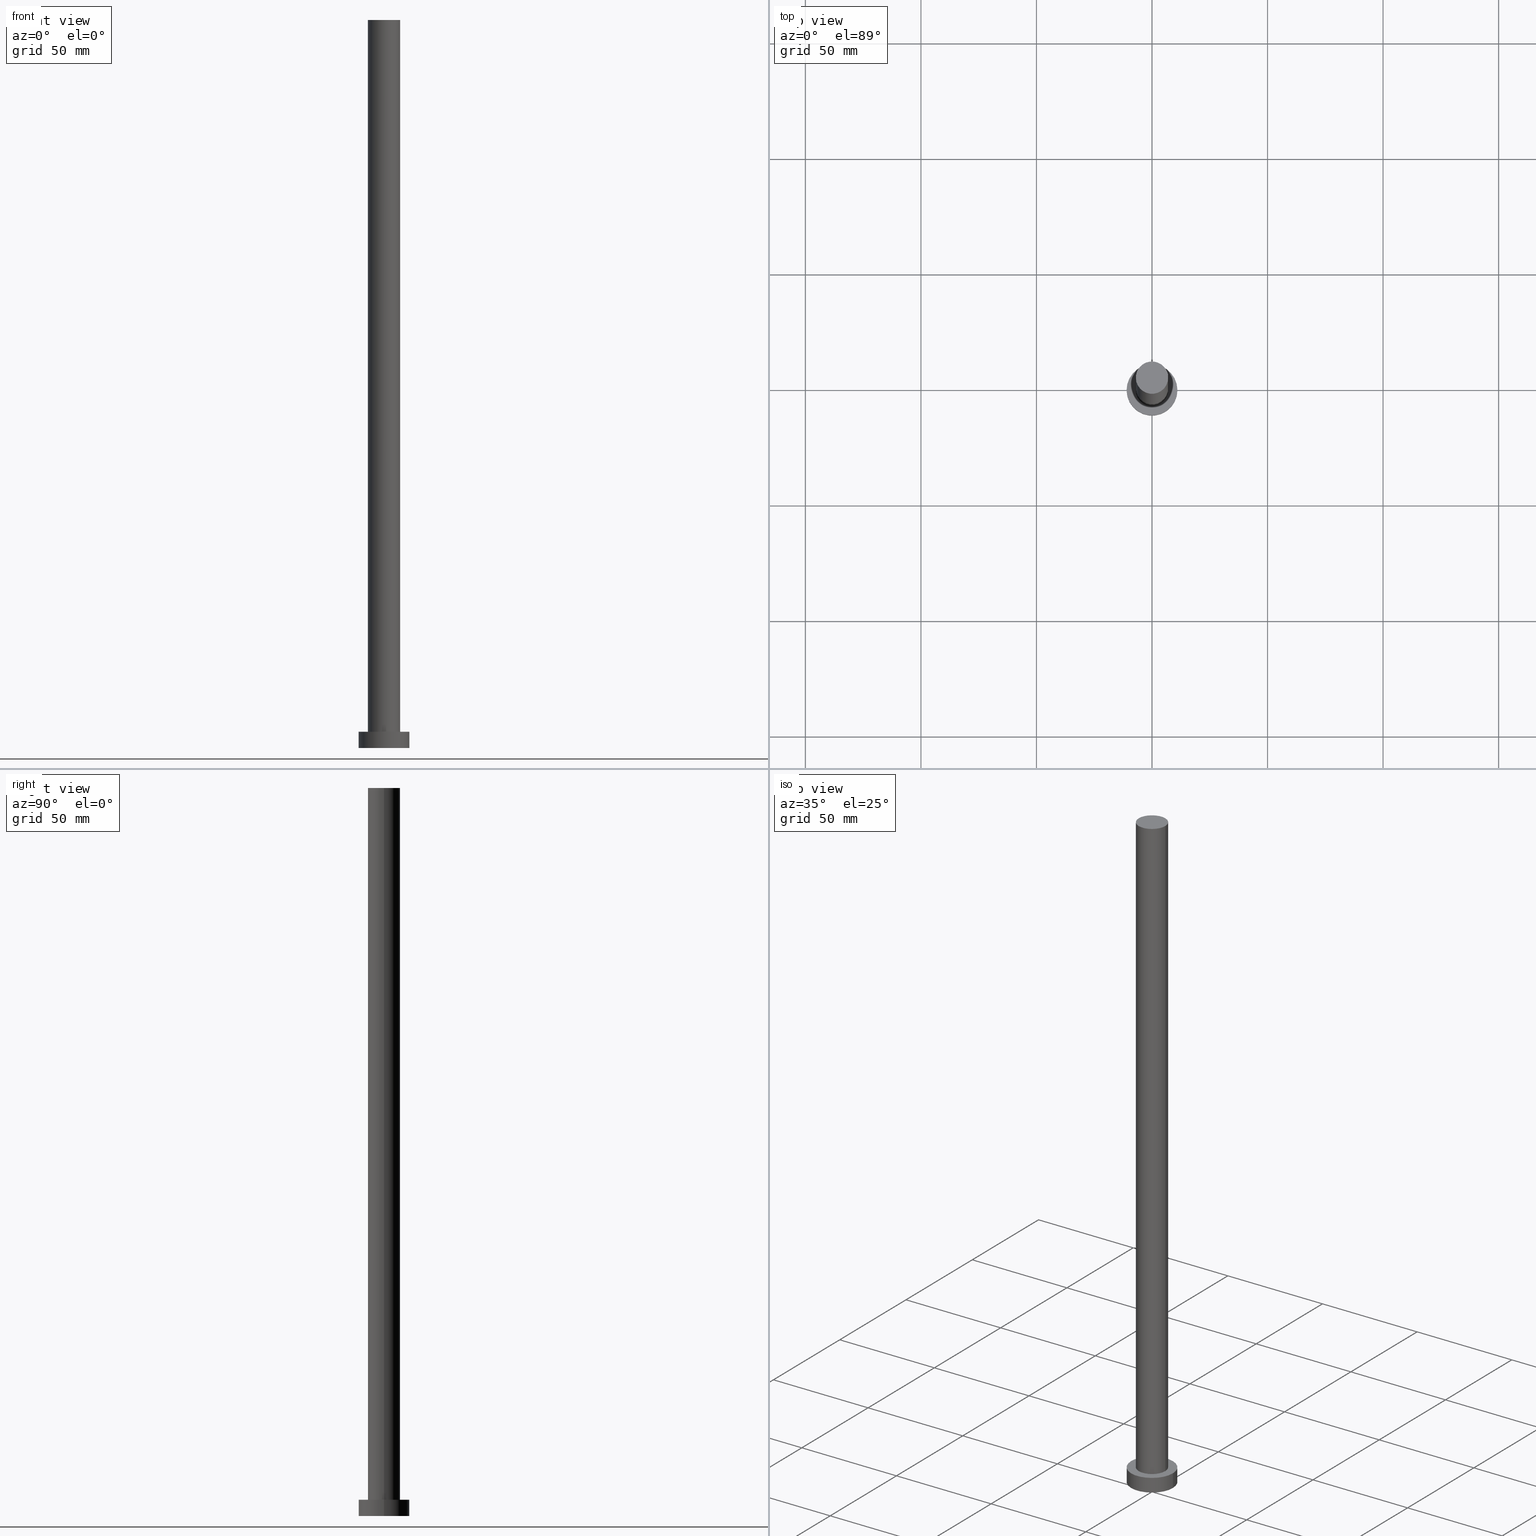
[diagram: canonical four-view strip — front | top / right | iso, engineering-drawing reading convention]
A machine part, canonical four-view strip (front | top / right | iso — engineering-drawing reading convention). The complete STEP part file that produces these views, byte-faithful:
ISO-10303-21;
HEADER;
FILE_DESCRIPTION (( 'STEP AP203' ),
    '1' );
FILE_NAME ('f602.STEP',
    '2023-02-13T09:16:23',
    ( '' ),
    ( '' ),
    'SwSTEP 2.0',
    'SolidWorks 2019',
    '' );
FILE_SCHEMA (( 'CONFIG_CONTROL_DESIGN' ));
ENDSEC;

DATA;
#1 = DIRECTION ( 'NONE',  ( 0.000000000000000000, 0.000000000000000000, 1.000000000000000000 ) ) ;
#2 = CARTESIAN_POINT ( 'NONE',  ( 0.000000000000000000, 0.000000000000000000, 7.000000000000000000 ) ) ;
#3 = DIRECTION ( 'NONE',  ( -1.000000000000000000, 0.000000000000000000, 0.000000000000000000 ) ) ;
#4 =( GEOMETRIC_REPRESENTATION_CONTEXT ( 3 ) GLOBAL_UNCERTAINTY_ASSIGNED_CONTEXT ( ( #163 ) ) GLOBAL_UNIT_ASSIGNED_CONTEXT ( ( #18, #195, #158 ) ) REPRESENTATION_CONTEXT ( 'NONE', 'WORKASPACE' ) );
#5 = CARTESIAN_POINT ( 'NONE',  ( 11.00000000000000000, 1.347111479062088405E-15, 0.000000000000000000 ) ) ;
#6 = DIRECTION ( 'NONE',  ( 1.000000000000000000, 0.000000000000000000, 0.000000000000000000 ) ) ;
#7 = CC_DESIGN_PERSON_AND_ORGANIZATION_ASSIGNMENT ( #89, #147, ( #237 ) ) ;
#8 = EDGE_LOOP ( 'NONE', ( #34, #234, #253, #170 ) ) ;
#9 = APPROVAL_ROLE ( '' ) ;
#10 = DIRECTION ( 'NONE',  ( 0.000000000000000000, 0.000000000000000000, 1.000000000000000000 ) ) ;
#11 = ORIENTED_EDGE ( 'NONE', *, *, #33, .T. ) ;
#12 = ADVANCED_FACE ( 'NONE', ( #66 ), #197, .T. ) ;
#13 = FACE_OUTER_BOUND ( 'NONE', #69, .T. ) ;
#14 = CARTESIAN_POINT ( 'NONE',  ( 11.00000000000000000, 1.347111479062088405E-15, 7.000000000000000000 ) ) ;
#15 = VERTEX_POINT ( 'NONE', #131 ) ;
#16 = CARTESIAN_POINT ( 'NONE',  ( -11.00000000000000000, 0.000000000000000000, 7.000000000000000000 ) ) ;
#17 = FACE_OUTER_BOUND ( 'NONE', #91, .T. ) ;
#18 =( LENGTH_UNIT ( ) NAMED_UNIT ( * ) SI_UNIT ( .MILLI., .METRE. ) );
#19 = DIRECTION ( 'NONE',  ( 1.000000000000000000, 0.000000000000000000, 0.000000000000000000 ) ) ;
#20 = AXIS2_PLACEMENT_3D ( 'NONE', #2, #171, #119 ) ;
#21 = ADVANCED_FACE ( 'NONE', ( #115, #48 ), #28, .T. ) ;
#22 = APPROVAL_DATE_TIME ( #36, #124 ) ;
#23 = PLANE ( 'NONE',  #152 ) ;
#24 = CIRCLE ( 'NONE', #200, 11.00000000000000000 ) ;
#25 = CARTESIAN_POINT ( 'NONE',  ( 7.000000000000000000, 8.572527594031473190E-16, 7.000000000000000000 ) ) ;
#26 = AXIS2_PLACEMENT_3D ( 'NONE', #241, #59, #3 ) ;
#27 = CALENDAR_DATE ( 2023, 13, 2 ) ;
#28 = PLANE ( 'NONE',  #93 ) ;
#29 = APPROVAL_STATUS ( 'not_yet_approved' ) ;
#30 = AXIS2_PLACEMENT_3D ( 'NONE', #196, #10, #110 ) ;
#31 = ORIENTED_EDGE ( 'NONE', *, *, #176, .T. ) ;
#32 = DATE_AND_TIME ( #136, #37 ) ;
#33 = EDGE_CURVE ( 'NONE', #229, #112, #24, .T. ) ;
#34 = ORIENTED_EDGE ( 'NONE', *, *, #176, .F. ) ;
#35 = CARTESIAN_POINT ( 'NONE',  ( -7.000000000000000000, 0.000000000000000000, 7.000000000000000000 ) ) ;
#36 = DATE_AND_TIME ( #60, #166 ) ;
#37 = LOCAL_TIME ( 10, 16, 23.00000000000000000, #235 ) ;
#38 = CARTESIAN_POINT ( 'NONE',  ( -11.00000000000000000, 0.000000000000000000, 0.000000000000000000 ) ) ;
#39 = PERSON_AND_ORGANIZATION ( #255, #194 ) ;
#40 = DIRECTION ( 'NONE',  ( 1.000000000000000000, 0.000000000000000000, 0.000000000000000000 ) ) ;
#41 = PRODUCT_RELATED_PRODUCT_CATEGORY ( 'detail', '', ( #151 ) ) ;
#42 = AXIS2_PLACEMENT_3D ( 'NONE', #220, #102, #40 ) ;
#43 = CC_DESIGN_APPROVAL ( #204, ( #74 ) ) ;
#44 = ORIENTED_EDGE ( 'NONE', *, *, #135, .T. ) ;
#45 = EDGE_CURVE ( 'NONE', #132, #155, #137, .T. ) ;
#46 = AXIS2_PLACEMENT_3D ( 'NONE', #78, #186, #138 ) ;
#47 = ORIENTED_EDGE ( 'NONE', *, *, #63, .T. ) ;
#48 = FACE_OUTER_BOUND ( 'NONE', #53, .T. ) ;
#49 = DATE_TIME_ROLE ( 'classification_date' ) ;
#50 = CALENDAR_DATE ( 2023, 13, 2 ) ;
#51 = CARTESIAN_POINT ( 'NONE',  ( 0.000000000000000000, 0.000000000000000000, 315.0000000000000000 ) ) ;
#52 = EDGE_CURVE ( 'NONE', #239, #254, #87, .T. ) ;
#53 = EDGE_LOOP ( 'NONE', ( #154, #47 ) ) ;
#54 = DIRECTION ( 'NONE',  ( 1.000000000000000000, 0.000000000000000000, 0.000000000000000000 ) ) ;
#55 = EDGE_CURVE ( 'NONE', #112, #229, #247, .T. ) ;
#56 = CIRCLE ( 'NONE', #42, 11.00000000000000000 ) ;
#57 = COORDINATED_UNIVERSAL_TIME_OFFSET ( 1, 0, .AHEAD. ) ;
#58 = APPROVAL_PERSON_ORGANIZATION ( #82, #114, #9 ) ;
#59 = DIRECTION ( 'NONE',  ( -0.000000000000000000, -0.000000000000000000, -1.000000000000000000 ) ) ;
#60 = CALENDAR_DATE ( 2023, 13, 2 ) ;
#61 = VECTOR ( 'NONE', #228, 1000.000000000000000 ) ;
#62 = APPROVAL_PERSON_ORGANIZATION ( #81, #124, #206 ) ;
#63 = EDGE_CURVE ( 'NONE', #15, #199, #178, .T. ) ;
#64 = ORIENTED_EDGE ( 'NONE', *, *, #55, .F. ) ;
#65 = PERSON_AND_ORGANIZATION_ROLE ( 'classification_officer' ) ;
#66 = FACE_OUTER_BOUND ( 'NONE', #214, .T. ) ;
#67 = COORDINATED_UNIVERSAL_TIME_OFFSET ( 1, 0, .AHEAD. ) ;
#68 = CC_DESIGN_PERSON_AND_ORGANIZATION_ASSIGNMENT ( #164, #223, ( #86 ) ) ;
#69 = EDGE_LOOP ( 'NONE', ( #236, #70, #44, #160 ) ) ;
#70 = ORIENTED_EDGE ( 'NONE', *, *, #45, .T. ) ;
#71 = DIRECTION ( 'NONE',  ( 0.000000000000000000, 0.000000000000000000, 1.000000000000000000 ) ) ;
#72 = DIRECTION ( 'NONE',  ( -0.000000000000000000, -0.000000000000000000, -1.000000000000000000 ) ) ;
#73 = ORIENTED_EDGE ( 'NONE', *, *, #215, .F. ) ;
#74 = SECURITY_CLASSIFICATION ( '', '', #141 ) ;
#75 = DIRECTION ( 'NONE',  ( -0.000000000000000000, -0.000000000000000000, -1.000000000000000000 ) ) ;
#76 = CYLINDRICAL_SURFACE ( 'NONE', #26, 11.00000000000000000 ) ;
#77 = CIRCLE ( 'NONE', #99, 7.000000000000000000 ) ;
#78 = CARTESIAN_POINT ( 'NONE',  ( 0.000000000000000000, 0.000000000000000000, 7.000000000000000000 ) ) ;
#79 = CARTESIAN_POINT ( 'NONE',  ( -11.00000000000000000, 0.000000000000000000, 7.000000000000000000 ) ) ;
#80 = CC_DESIGN_DATE_AND_TIME_ASSIGNMENT ( #232, #49, ( #74 ) ) ;
#81 = PERSON_AND_ORGANIZATION ( #255, #194 ) ;
#82 = PERSON_AND_ORGANIZATION ( #255, #194 ) ;
#83 = FACE_OUTER_BOUND ( 'NONE', #8, .T. ) ;
#84 = CC_DESIGN_PERSON_AND_ORGANIZATION_ASSIGNMENT ( #191, #202, ( #86 ) ) ;
#85 = VECTOR ( 'NONE', #75, 1000.000000000000000 ) ;
#86 = PRODUCT_DEFINITION_FORMATION_WITH_SPECIFIED_SOURCE ( 'LIBOVOLN�', '', #151, .NOT_KNOWN. ) ;
#87 = LINE ( 'NONE', #245, #172 ) ;
#88 = LINE ( 'NONE', #14, #180 ) ;
#89 = PERSON_AND_ORGANIZATION ( #255, #194 ) ;
#90 = EDGE_CURVE ( 'NONE', #199, #15, #56, .T. ) ;
#91 = EDGE_LOOP ( 'NONE', ( #128, #31, #11, #150 ) ) ;
#92 = EDGE_CURVE ( 'NONE', #199, #112, #201, .T. ) ;
#93 = AXIS2_PLACEMENT_3D ( 'NONE', #216, #95, #134 ) ;
#94 = LOCAL_TIME ( 10, 16, 23.00000000000000000, #233 ) ;
#95 = DIRECTION ( 'NONE',  ( 0.000000000000000000, 0.000000000000000000, 1.000000000000000000 ) ) ;
#96 = APPROVAL_ROLE ( '' ) ;
#97 = EDGE_CURVE ( 'NONE', #132, #239, #133, .T. ) ;
#98 = DIRECTION ( 'NONE',  ( -0.000000000000000000, -0.000000000000000000, -1.000000000000000000 ) ) ;
#99 = AXIS2_PLACEMENT_3D ( 'NONE', #203, #185, #165 ) ;
#100 = DATE_TIME_ROLE ( 'creation_date' ) ;
#101 = DIRECTION ( 'NONE',  ( 0.000000000000000000, 0.000000000000000000, 1.000000000000000000 ) ) ;
#102 = DIRECTION ( 'NONE',  ( 0.000000000000000000, 0.000000000000000000, 1.000000000000000000 ) ) ;
#103 = CARTESIAN_POINT ( 'NONE',  ( 0.000000000000000000, 0.000000000000000000, 0.000000000000000000 ) ) ;
#104 = CYLINDRICAL_SURFACE ( 'NONE', #20, 11.00000000000000000 ) ;
#105 = ADVANCED_BREP_SHAPE_REPRESENTATION ( 'f602', ( #225, #231 ), #4 ) ;
#106 = CIRCLE ( 'NONE', #226, 7.000000000000000000 ) ;
#107 = ADVANCED_FACE ( 'NONE', ( #211 ), #174, .T. ) ;
#108 = CC_DESIGN_APPROVAL ( #124, ( #86 ) ) ;
#109 = ORIENTED_EDGE ( 'NONE', *, *, #52, .T. ) ;
#110 = DIRECTION ( 'NONE',  ( 1.000000000000000000, 0.000000000000000000, 0.000000000000000000 ) ) ;
#111 = ORIENTED_EDGE ( 'NONE', *, *, #33, .F. ) ;
#112 = VERTEX_POINT ( 'NONE', #38 ) ;
#113 = DIRECTION ( 'NONE',  ( 0.000000000000000000, 0.000000000000000000, 1.000000000000000000 ) ) ;
#114 = APPROVAL ( #175, 'NEUR�EN�' ) ;
#115 = FACE_BOUND ( 'NONE', #192, .T. ) ;
#116 = CC_DESIGN_SECURITY_CLASSIFICATION ( #74, ( #86 ) ) ;
#117 = CARTESIAN_POINT ( 'NONE',  ( 7.000000000000000000, 8.572527594031473190E-16, 315.0000000000000000 ) ) ;
#118 = DESIGN_CONTEXT ( 'detailed design', #210, 'design' ) ;
#119 = DIRECTION ( 'NONE',  ( -1.000000000000000000, 0.000000000000000000, 0.000000000000000000 ) ) ;
#120 = CC_DESIGN_DATE_AND_TIME_ASSIGNMENT ( #221, #100, ( #237 ) ) ;
#121 = DIRECTION ( 'NONE',  ( 1.000000000000000000, 0.000000000000000000, -0.000000000000000000 ) ) ;
#122 = AXIS2_PLACEMENT_3D ( 'NONE', #249, #1, #183 ) ;
#123 = AXIS2_PLACEMENT_3D ( 'NONE', #162, #142, #140 ) ;
#124 = APPROVAL ( #244, 'NEUR�EN�' ) ;
#125 = APPROVAL_DATE_TIME ( #130, #114 ) ;
#126 = CLOSED_SHELL ( 'NONE', ( #127, #145, #189, #21, #149, #12, #107 ) ) ;
#127 = ADVANCED_FACE ( 'NONE', ( #13 ), #159, .T. ) ;
#128 = ORIENTED_EDGE ( 'NONE', *, *, #63, .F. ) ;
#129 = PERSON_AND_ORGANIZATION ( #255, #194 ) ;
#130 = DATE_AND_TIME ( #50, #94 ) ;
#131 = CARTESIAN_POINT ( 'NONE',  ( 11.00000000000000000, 1.347111479062088405E-15, 7.000000000000000000 ) ) ;
#132 = VERTEX_POINT ( 'NONE', #117 ) ;
#133 = CIRCLE ( 'NONE', #208, 7.000000000000000000 ) ;
#134 = DIRECTION ( 'NONE',  ( 1.000000000000000000, 0.000000000000000000, -0.000000000000000000 ) ) ;
#135 = EDGE_CURVE ( 'NONE', #155, #254, #77, .T. ) ;
#136 = CALENDAR_DATE ( 2023, 13, 2 ) ;
#137 = LINE ( 'NONE', #224, #61 ) ;
#138 = DIRECTION ( 'NONE',  ( 1.000000000000000000, 0.000000000000000000, 0.000000000000000000 ) ) ;
#139 = AXIS2_PLACEMENT_3D ( 'NONE', #51, #72, #157 ) ;
#140 = DIRECTION ( 'NONE',  ( -1.000000000000000000, 0.000000000000000000, 0.000000000000000000 ) ) ;
#141 = SECURITY_CLASSIFICATION_LEVEL ( 'unclassified' ) ;
#142 = DIRECTION ( 'NONE',  ( -0.000000000000000000, -0.000000000000000000, -1.000000000000000000 ) ) ;
#143 = PERSON_AND_ORGANIZATION ( #255, #194 ) ;
#144 = PERSON_AND_ORGANIZATION_ROLE ( 'design_owner' ) ;
#145 = ADVANCED_FACE ( 'NONE', ( #17 ), #76, .T. ) ;
#146 = CIRCLE ( 'NONE', #30, 7.000000000000000000 ) ;
#147 = PERSON_AND_ORGANIZATION_ROLE ( 'creator' ) ;
#148 = PRODUCT_DEFINITION_SHAPE ( 'NONE', 'NONE',  #237 ) ;
#149 = ADVANCED_FACE ( 'NONE', ( #168 ), #23, .F. ) ;
#150 = ORIENTED_EDGE ( 'NONE', *, *, #92, .F. ) ;
#151 = PRODUCT ( 'f602', 'f602', '', ( #243 ) ) ;
#152 = AXIS2_PLACEMENT_3D ( 'NONE', #103, #169, #121 ) ;
#153 = EDGE_LOOP ( 'NONE', ( #64, #111 ) ) ;
#154 = ORIENTED_EDGE ( 'NONE', *, *, #90, .T. ) ;
#155 = VERTEX_POINT ( 'NONE', #25 ) ;
#156 = ORIENTED_EDGE ( 'NONE', *, *, #135, .F. ) ;
#157 = DIRECTION ( 'NONE',  ( -1.000000000000000000, 0.000000000000000000, 0.000000000000000000 ) ) ;
#158 =( NAMED_UNIT ( * ) SI_UNIT ( $, .STERADIAN. ) SOLID_ANGLE_UNIT ( ) );
#159 = CYLINDRICAL_SURFACE ( 'NONE', #123, 7.000000000000000000 ) ;
#160 = ORIENTED_EDGE ( 'NONE', *, *, #52, .F. ) ;
#161 = CC_DESIGN_PERSON_AND_ORGANIZATION_ASSIGNMENT ( #143, #144, ( #151 ) ) ;
#162 = CARTESIAN_POINT ( 'NONE',  ( 0.000000000000000000, 0.000000000000000000, 315.0000000000000000 ) ) ;
#163 = UNCERTAINTY_MEASURE_WITH_UNIT (LENGTH_MEASURE( 1.000000000000000082E-05 ), #18, 'distance_accuracy_value', 'NONE');
#164 = PERSON_AND_ORGANIZATION ( #255, #194 ) ;
#165 = DIRECTION ( 'NONE',  ( 1.000000000000000000, 0.000000000000000000, 0.000000000000000000 ) ) ;
#166 = LOCAL_TIME ( 10, 16, 23.00000000000000000, #184 ) ;
#167 = CARTESIAN_POINT ( 'NONE',  ( 0.000000000000000000, 0.000000000000000000, 315.0000000000000000 ) ) ;
#168 = FACE_OUTER_BOUND ( 'NONE', #153, .T. ) ;
#169 = DIRECTION ( 'NONE',  ( 0.000000000000000000, 0.000000000000000000, 1.000000000000000000 ) ) ;
#170 = ORIENTED_EDGE ( 'NONE', *, *, #55, .T. ) ;
#171 = DIRECTION ( 'NONE',  ( -0.000000000000000000, -0.000000000000000000, -1.000000000000000000 ) ) ;
#172 = VECTOR ( 'NONE', #209, 1000.000000000000000 ) ;
#173 = APPROVAL_PERSON_ORGANIZATION ( #129, #204, #96 ) ;
#174 = PLANE ( 'NONE',  #122 ) ;
#175 = APPROVAL_STATUS ( 'not_yet_approved' ) ;
#176 = EDGE_CURVE ( 'NONE', #15, #229, #88, .T. ) ;
#177 = ORIENTED_EDGE ( 'NONE', *, *, #181, .T. ) ;
#178 = CIRCLE ( 'NONE', #46, 11.00000000000000000 ) ;
#179 = EDGE_LOOP ( 'NONE', ( #219, #212 ) ) ;
#180 = VECTOR ( 'NONE', #98, 1000.000000000000000 ) ;
#181 = EDGE_CURVE ( 'NONE', #254, #155, #146, .T. ) ;
#182 = ORIENTED_EDGE ( 'NONE', *, *, #45, .F. ) ;
#183 = DIRECTION ( 'NONE',  ( 1.000000000000000000, 0.000000000000000000, -0.000000000000000000 ) ) ;
#184 = COORDINATED_UNIVERSAL_TIME_OFFSET ( 1, 0, .AHEAD. ) ;
#185 = DIRECTION ( 'NONE',  ( 0.000000000000000000, 0.000000000000000000, 1.000000000000000000 ) ) ;
#186 = DIRECTION ( 'NONE',  ( 0.000000000000000000, 0.000000000000000000, 1.000000000000000000 ) ) ;
#187 = CC_DESIGN_APPROVAL ( #114, ( #237 ) ) ;
#188 = CALENDAR_DATE ( 2023, 13, 2 ) ;
#189 = ADVANCED_FACE ( 'NONE', ( #83 ), #104, .T. ) ;
#190 = DIRECTION ( 'NONE',  ( 0.000000000000000000, 0.000000000000000000, 1.000000000000000000 ) ) ;
#191 = PERSON_AND_ORGANIZATION ( #255, #194 ) ;
#192 = EDGE_LOOP ( 'NONE', ( #251, #156 ) ) ;
#193 = CARTESIAN_POINT ( 'NONE',  ( 0.000000000000000000, 0.000000000000000000, 0.000000000000000000 ) ) ;
#194 = ORGANIZATION ( 'NEUR�EN�', 'NEUR�EN�', '' ) ;
#195 =( NAMED_UNIT ( * ) PLANE_ANGLE_UNIT ( ) SI_UNIT ( $, .RADIAN. ) );
#196 = CARTESIAN_POINT ( 'NONE',  ( 0.000000000000000000, 0.000000000000000000, 7.000000000000000000 ) ) ;
#197 = CYLINDRICAL_SURFACE ( 'NONE', #139, 7.000000000000000000 ) ;
#198 = DIRECTION ( 'NONE',  ( 1.000000000000000000, 0.000000000000000000, 0.000000000000000000 ) ) ;
#199 = VERTEX_POINT ( 'NONE', #79 ) ;
#200 = AXIS2_PLACEMENT_3D ( 'NONE', #218, #113, #54 ) ;
#201 = LINE ( 'NONE', #16, #85 ) ;
#202 = PERSON_AND_ORGANIZATION_ROLE ( 'creator' ) ;
#203 = CARTESIAN_POINT ( 'NONE',  ( 0.000000000000000000, 0.000000000000000000, 7.000000000000000000 ) ) ;
#204 = APPROVAL ( #29, 'NEUR�EN�' ) ;
#205 = APPLICATION_PROTOCOL_DEFINITION ( 'international standard', 'config_control_design', 1994, #210 ) ;
#206 = APPROVAL_ROLE ( '' ) ;
#207 = DIRECTION ( 'NONE',  ( 0.000000000000000000, 0.000000000000000000, 1.000000000000000000 ) ) ;
#208 = AXIS2_PLACEMENT_3D ( 'NONE', #222, #207, #246 ) ;
#209 = DIRECTION ( 'NONE',  ( -0.000000000000000000, -0.000000000000000000, -1.000000000000000000 ) ) ;
#210 = APPLICATION_CONTEXT ( 'configuration controlled 3d designs of mechanical parts and assemblies' ) ;
#211 = FACE_OUTER_BOUND ( 'NONE', #179, .T. ) ;
#212 = ORIENTED_EDGE ( 'NONE', *, *, #97, .T. ) ;
#213 = APPLICATION_CONTEXT ( 'configuration controlled 3d designs of mechanical parts and assemblies' ) ;
#214 = EDGE_LOOP ( 'NONE', ( #182, #73, #109, #177 ) ) ;
#215 = EDGE_CURVE ( 'NONE', #239, #132, #106, .T. ) ;
#216 = CARTESIAN_POINT ( 'NONE',  ( 0.000000000000000000, 0.000000000000000000, 7.000000000000000000 ) ) ;
#217 = AXIS2_PLACEMENT_3D ( 'NONE', #193, #101, #6 ) ;
#218 = CARTESIAN_POINT ( 'NONE',  ( 0.000000000000000000, 0.000000000000000000, 0.000000000000000000 ) ) ;
#219 = ORIENTED_EDGE ( 'NONE', *, *, #215, .T. ) ;
#220 = CARTESIAN_POINT ( 'NONE',  ( 0.000000000000000000, 0.000000000000000000, 7.000000000000000000 ) ) ;
#221 = DATE_AND_TIME ( #188, #242 ) ;
#222 = CARTESIAN_POINT ( 'NONE',  ( 0.000000000000000000, 0.000000000000000000, 315.0000000000000000 ) ) ;
#223 = PERSON_AND_ORGANIZATION_ROLE ( 'design_supplier' ) ;
#224 = CARTESIAN_POINT ( 'NONE',  ( 7.000000000000000000, 8.572527594031473190E-16, 315.0000000000000000 ) ) ;
#225 = MANIFOLD_SOLID_BREP ( 'P�idat vysunut�m3', #126 ) ;
#226 = AXIS2_PLACEMENT_3D ( 'NONE', #167, #190, #19 ) ;
#227 = CC_DESIGN_PERSON_AND_ORGANIZATION_ASSIGNMENT ( #39, #65, ( #74 ) ) ;
#228 = DIRECTION ( 'NONE',  ( -0.000000000000000000, -0.000000000000000000, -1.000000000000000000 ) ) ;
#229 = VERTEX_POINT ( 'NONE', #5 ) ;
#230 = SHAPE_DEFINITION_REPRESENTATION ( #148, #105 ) ;
#231 = AXIS2_PLACEMENT_3D ( 'NONE', #252, #71, #198 ) ;
#232 = DATE_AND_TIME ( #27, #248 ) ;
#233 = COORDINATED_UNIVERSAL_TIME_OFFSET ( 1, 0, .AHEAD. ) ;
#234 = ORIENTED_EDGE ( 'NONE', *, *, #90, .F. ) ;
#235 = COORDINATED_UNIVERSAL_TIME_OFFSET ( 1, 0, .AHEAD. ) ;
#236 = ORIENTED_EDGE ( 'NONE', *, *, #97, .F. ) ;
#237 = PRODUCT_DEFINITION ( 'NEZN�M�', '', #86, #118 ) ;
#238 = APPLICATION_PROTOCOL_DEFINITION ( 'international standard', 'config_control_design', 1994, #213 ) ;
#239 = VERTEX_POINT ( 'NONE', #240 ) ;
#240 = CARTESIAN_POINT ( 'NONE',  ( -7.000000000000000000, 0.000000000000000000, 315.0000000000000000 ) ) ;
#241 = CARTESIAN_POINT ( 'NONE',  ( 0.000000000000000000, 0.000000000000000000, 7.000000000000000000 ) ) ;
#242 = LOCAL_TIME ( 10, 16, 23.00000000000000000, #57 ) ;
#243 = MECHANICAL_CONTEXT ( 'NONE', #213, 'mechanical' ) ;
#244 = APPROVAL_STATUS ( 'not_yet_approved' ) ;
#245 = CARTESIAN_POINT ( 'NONE',  ( -7.000000000000000000, 0.000000000000000000, 315.0000000000000000 ) ) ;
#246 = DIRECTION ( 'NONE',  ( 1.000000000000000000, 0.000000000000000000, 0.000000000000000000 ) ) ;
#247 = CIRCLE ( 'NONE', #217, 11.00000000000000000 ) ;
#248 = LOCAL_TIME ( 10, 16, 23.00000000000000000, #67 ) ;
#249 = CARTESIAN_POINT ( 'NONE',  ( 0.000000000000000000, 0.000000000000000000, 315.0000000000000000 ) ) ;
#250 = APPROVAL_DATE_TIME ( #32, #204 ) ;
#251 = ORIENTED_EDGE ( 'NONE', *, *, #181, .F. ) ;
#252 = CARTESIAN_POINT ( 'NONE',  ( 0.000000000000000000, 0.000000000000000000, 0.000000000000000000 ) ) ;
#253 = ORIENTED_EDGE ( 'NONE', *, *, #92, .T. ) ;
#254 = VERTEX_POINT ( 'NONE', #35 ) ;
#255 = PERSON ( 'NEUR�EN�', 'NEUR�EN�', 'NEUR�EN�', ('NEUR�EN�'), ('NEUR�EN�'), ('NEUR�EN�') ) ;
ENDSEC;
END-ISO-10303-21;
